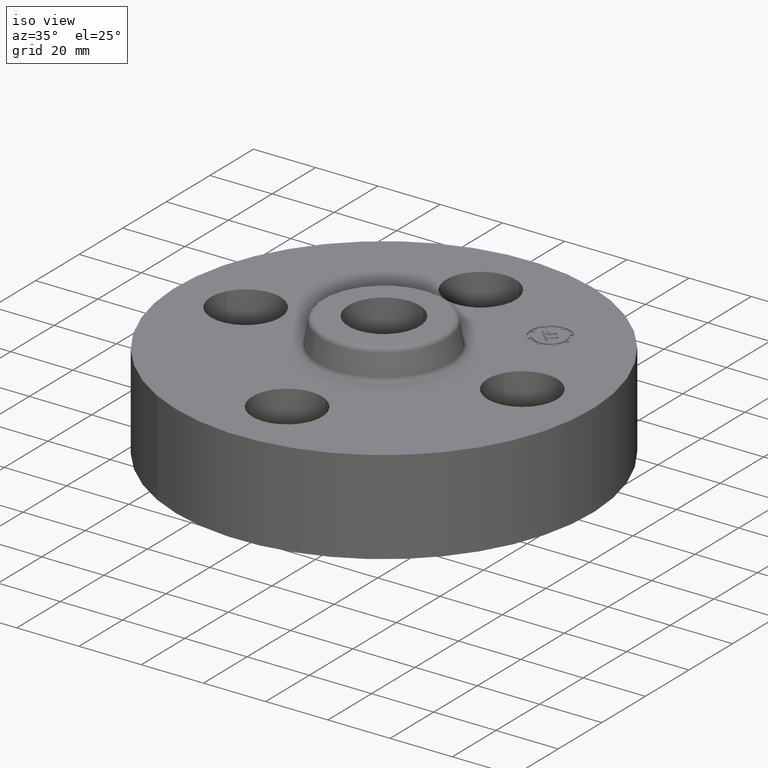
[diagram: clean part render]
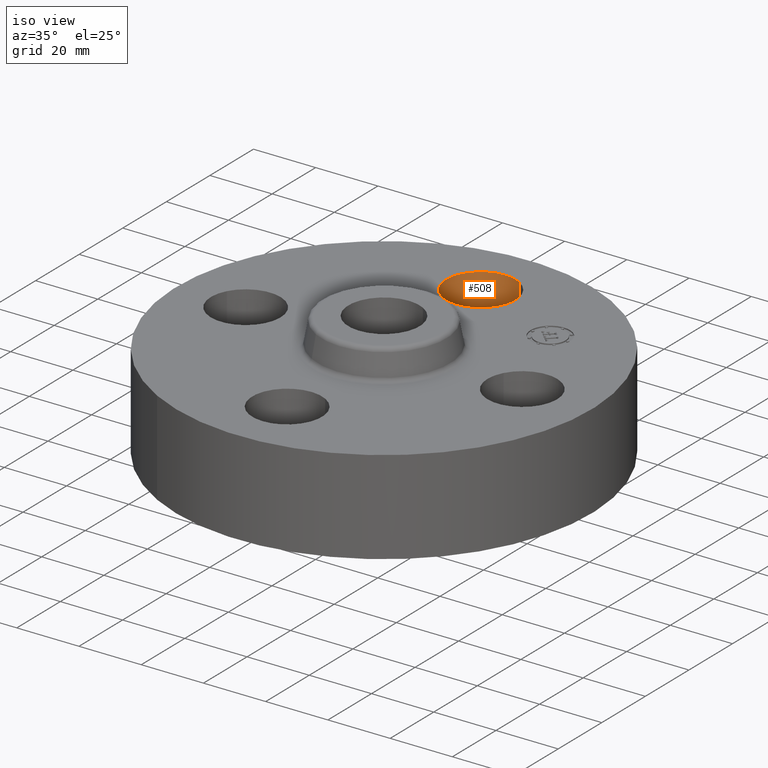
[diagram: same view with one face highlighted and labeled with its STEP entity id]
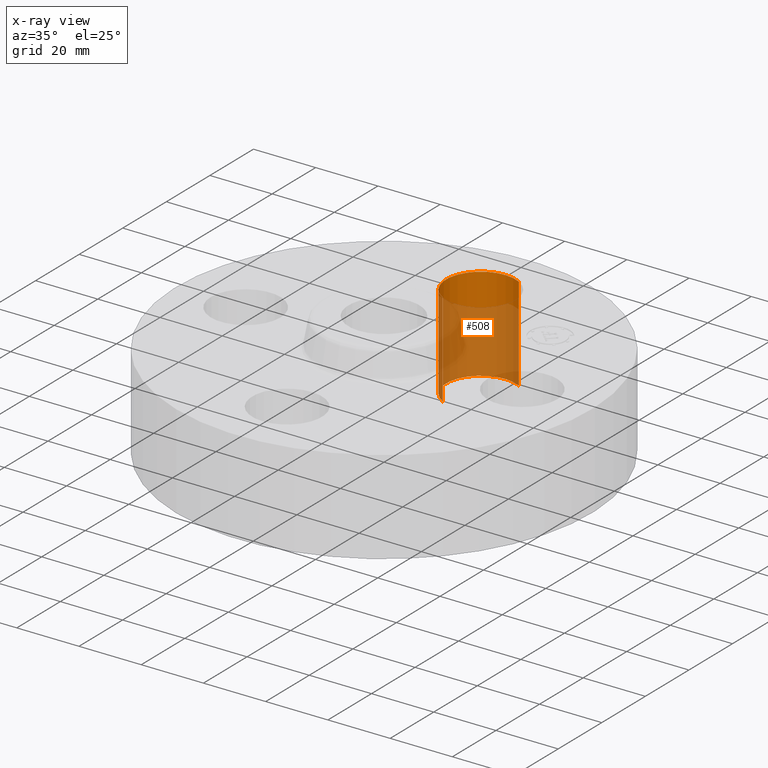
[diagram: x-ray of the same camera — body ghosted, the highlighted face saturated]
A machine part, iso view. The second image highlights one B-rep face of the part: STEP entity #508.
The next image is the same camera in x-ray: the body ghosted, the highlighted face saturated — about 71% of this face is hidden behind the body in this view.
In plain terms, the highlighted cylindrical surface (partial cylindrical patch) has radius 11.176 mm, axis along (0, 0, -1).
Its self-contained STEP definition (entity closure, byte-faithful):
#461=AXIS2_PLACEMENT_3D('Circle Axis2P3D',#459,#460,$) ;
#481=AXIS2_PLACEMENT_3D('Cylinder Axis2P3D',#478,#479,#480) ;
#499=AXIS2_PLACEMENT_3D('Circle Axis2P3D',#497,#498,$) ;
#459=CARTESIAN_POINT('Axis2P3D Location',(-3.1470888887E-016,1.75000000001,0.)) ;
#463=CARTESIAN_POINT('Vertex',(-0.210947236987,1.36386367277,0.)) ;
#465=CARTESIAN_POINT('Vertex',(0.210947236987,2.13613632724,0.)) ;
#478=CARTESIAN_POINT('Axis2P3D Location',(-3.21469784777E-016,1.75000000001,1.18606299213)) ;
#483=CARTESIAN_POINT('Line Origine',(-0.210947236987,1.36386367277,0.595000000002)) ;
#487=CARTESIAN_POINT('Vertex',(-0.210947236987,1.36386367277,1.19)) ;
#490=CARTESIAN_POINT('Line Origine',(0.210947236987,2.13613632724,0.595000000002)) ;
#494=CARTESIAN_POINT('Vertex',(0.210947236987,2.13613632724,1.19)) ;
#497=CARTESIAN_POINT('Axis2P3D Location',(-3.21469784777E-016,1.75000000001,1.19)) ;
#460=DIRECTION('Axis2P3D Direction',(0.,0.,-0.0393700787402)) ;
#479=DIRECTION('Axis2P3D Direction',(0.,0.,-0.0393700787402)) ;
#480=DIRECTION('Axis2P3D XDirection',(0.0188750212049,0.0345504945626,0.)) ;
#484=DIRECTION('Vector Direction',(0.,0.,-0.0393700787402)) ;
#491=DIRECTION('Vector Direction',(0.,0.,-0.0393700787402)) ;
#498=DIRECTION('Axis2P3D Direction',(0.,0.,-0.0393700787402)) ;
#485=VECTOR('Line Direction',#484,0.0393700787402) ;
#492=VECTOR('Line Direction',#491,0.0393700787402) ;
#503=ORIENTED_EDGE('',*,*,#489,.F.) ;
#504=ORIENTED_EDGE('',*,*,#467,.T.) ;
#505=ORIENTED_EDGE('',*,*,#496,.T.) ;
#506=ORIENTED_EDGE('',*,*,#501,.F.) ;
#508=ADVANCED_FACE('PartBody',(#507),#482,.F.) ;
#462=CIRCLE('generated circle',#461,0.440000000002) ;
#500=CIRCLE('generated circle',#499,0.440000000002) ;
#482=CYLINDRICAL_SURFACE('generated cylinder',#481,0.440000000002) ;
#467=EDGE_CURVE('',#464,#466,#462,.T.) ;
#489=EDGE_CURVE('',#464,#488,#486,.F.) ;
#496=EDGE_CURVE('',#466,#495,#493,.F.) ;
#501=EDGE_CURVE('',#488,#495,#500,.T.) ;
#502=EDGE_LOOP('',(#503,#504,#505,#506)) ;
#507=FACE_OUTER_BOUND('',#502,.T.) ;
#486=LINE('Line',#483,#485) ;
#493=LINE('Line',#490,#492) ;
#464=VERTEX_POINT('',#463) ;
#466=VERTEX_POINT('',#465) ;
#488=VERTEX_POINT('',#487) ;
#495=VERTEX_POINT('',#494) ;